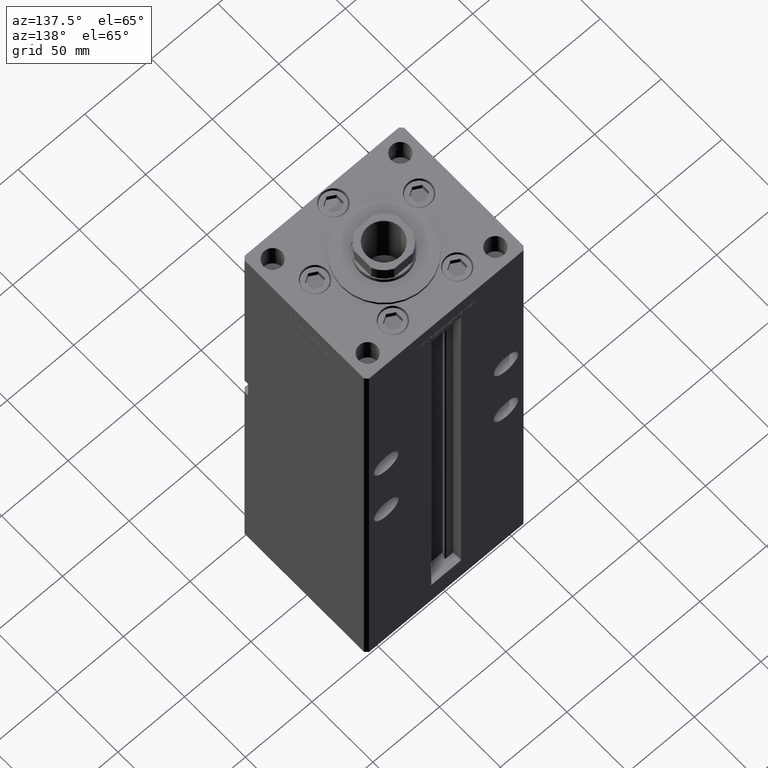
[diagram: clean part render]
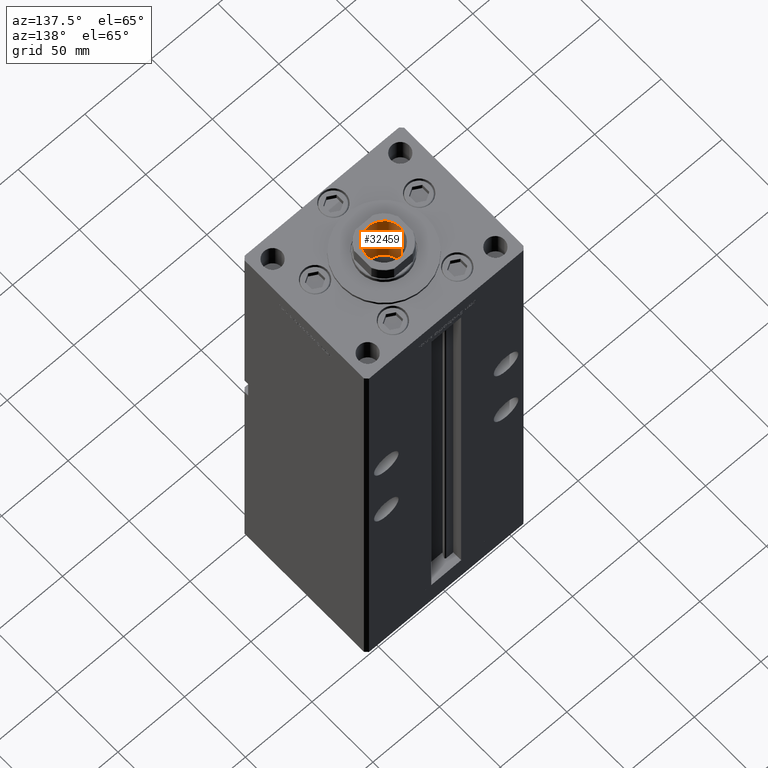
[diagram: same view with one face highlighted and labeled with its STEP entity id]
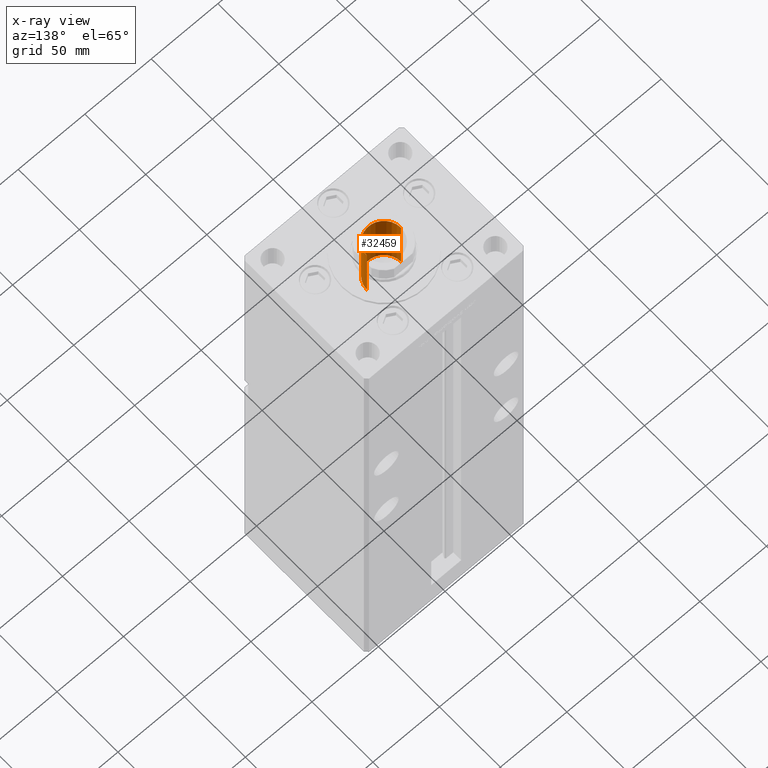
[diagram: x-ray of the same camera — body ghosted, the highlighted face saturated]
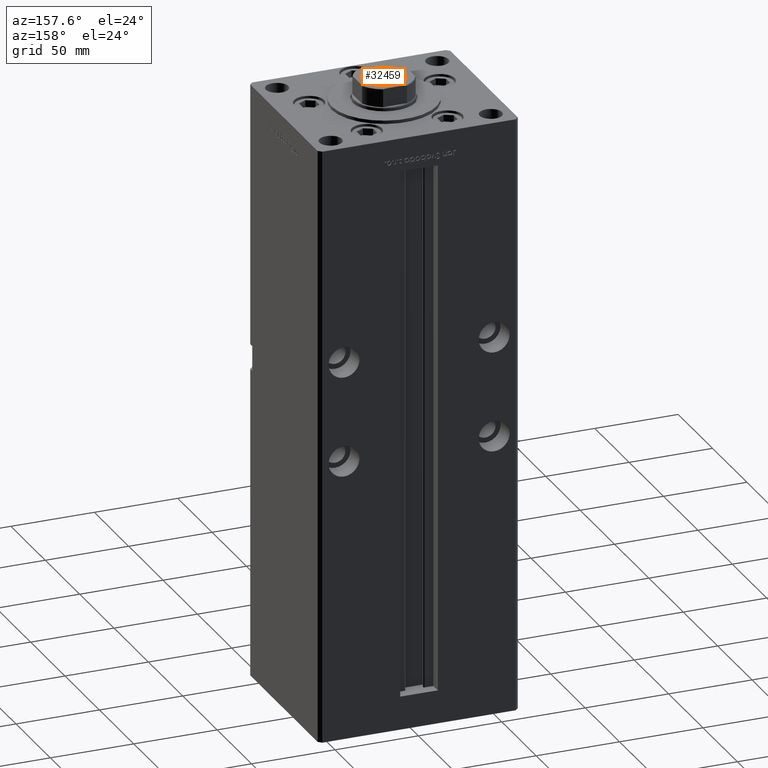
[diagram: same view with one face highlighted and labeled with its STEP entity id]
A machine part, auxiliary view. The second image highlights one B-rep face of the part: STEP entity #32459.
The next image is the same camera in x-ray: the body ghosted, the highlighted face saturated — about 0% of this face is hidden behind the body in this view.
A second angle (auxiliary view) of the same face is appended — the face is thin or edge-on in the first view.
In plain terms, the highlighted cylindrical surface (edge-blend (fillet) strip) has radius 12.75 mm, axis along (0, 0, 1).
Its self-contained STEP definition (entity closure, byte-faithful):
#1870 = DIRECTION ( 'NONE',  ( -0.000000000000000000, -0.000000000000000000, 1.000000000000000000 ) ) ;
#4074 = CARTESIAN_POINT ( 'NONE',  ( 0.000000000000000000, 0.000000000000000000, 338.9500000000000455 ) ) ;
#4358 = VERTEX_POINT ( 'NONE', #4905 ) ;
#4372 = EDGE_LOOP ( 'NONE', ( #51544, #21049, #38734, #51350 ) ) ;
#4905 = CARTESIAN_POINT ( 'NONE',  ( 12.74999999999999467, 0.000000000000000000, 338.9500000000000455 ) ) ;
#6139 = DIRECTION ( 'NONE',  ( 1.000000000000000000, 0.000000000000000000, 0.000000000000000000 ) ) ;
#6299 = EDGE_CURVE ( 'NONE', #47534, #4358, #16324, .T. ) ;
#7143 = VECTOR ( 'NONE', #36741, 1000.000000000000000 ) ;
#10584 = DIRECTION ( 'NONE',  ( -0.000000000000000000, -0.000000000000000000, 1.000000000000000000 ) ) ;
#12535 = CARTESIAN_POINT ( 'NONE',  ( 12.74999999999999467, 0.000000000000000000, 339.2500000000000000 ) ) ;
#14221 = CARTESIAN_POINT ( 'NONE',  ( -12.74999999999999112, 1.561424668912874125E-15, 294.2500000000000000 ) ) ;
#14475 = FACE_OUTER_BOUND ( 'NONE', #4372, .T. ) ;
#14761 = EDGE_CURVE ( 'NONE', #38089, #47534, #38512, .T. ) ;
#15255 = VECTOR ( 'NONE', #44278, 1000.000000000000000 ) ;
#15376 = AXIS2_PLACEMENT_3D ( 'NONE', #18941, #10584, #26993 ) ;
#16324 = LINE ( 'NONE', #12535, #15255 ) ;
#18233 = CIRCLE ( 'NONE', #49929, 12.74999999999999467 ) ;
#18941 = CARTESIAN_POINT ( 'NONE',  ( 0.000000000000000000, 0.000000000000000000, 294.2500000000000000 ) ) ;
#20826 = AXIS2_PLACEMENT_3D ( 'NONE', #50728, #1870, #6139 ) ;
#21049 = ORIENTED_EDGE ( 'NONE', *, *, #34244, .T. ) ;
#22376 = CARTESIAN_POINT ( 'NONE',  ( 12.74999999999999112, 0.000000000000000000, 294.2500000000000000 ) ) ;
#23841 = EDGE_CURVE ( 'NONE', #42766, #4358, #18233, .T. ) ;
#25772 = CYLINDRICAL_SURFACE ( 'NONE', #20826, 12.74999999999999467 ) ;
#26993 = DIRECTION ( 'NONE',  ( 1.000000000000000000, 0.000000000000000000, 0.000000000000000000 ) ) ;
#28777 = DIRECTION ( 'NONE',  ( 1.000000000000000000, 0.000000000000000000, 0.000000000000000000 ) ) ;
#32459 = ADVANCED_FACE ( 'NONE', ( #14475 ), #25772, .F. ) ;
#34244 = EDGE_CURVE ( 'NONE', #38089, #42766, #41283, .T. ) ;
#36741 = DIRECTION ( 'NONE',  ( -0.000000000000000000, -0.000000000000000000, 1.000000000000000000 ) ) ;
#37263 = CARTESIAN_POINT ( 'NONE',  ( -12.74999999999999467, 1.561424668912874519E-15, 339.2500000000000000 ) ) ;
#38089 = VERTEX_POINT ( 'NONE', #14221 ) ;
#38512 = CIRCLE ( 'NONE', #15376, 12.74999999999999112 ) ;
#38734 = ORIENTED_EDGE ( 'NONE', *, *, #23841, .T. ) ;
#41125 = DIRECTION ( 'NONE',  ( 0.000000000000000000, 0.000000000000000000, 1.000000000000000000 ) ) ;
#41283 = LINE ( 'NONE', #37263, #7143 ) ;
#42417 = CARTESIAN_POINT ( 'NONE',  ( -12.74999999999999467, 1.561424668912874519E-15, 338.9500000000000455 ) ) ;
#42766 = VERTEX_POINT ( 'NONE', #42417 ) ;
#44278 = DIRECTION ( 'NONE',  ( -0.000000000000000000, -0.000000000000000000, 1.000000000000000000 ) ) ;
#47534 = VERTEX_POINT ( 'NONE', #22376 ) ;
#49929 = AXIS2_PLACEMENT_3D ( 'NONE', #4074, #41125, #28777 ) ;
#50728 = CARTESIAN_POINT ( 'NONE',  ( 0.000000000000000000, 0.000000000000000000, 339.2500000000000000 ) ) ;
#51350 = ORIENTED_EDGE ( 'NONE', *, *, #6299, .F. ) ;
#51544 = ORIENTED_EDGE ( 'NONE', *, *, #14761, .F. ) ;